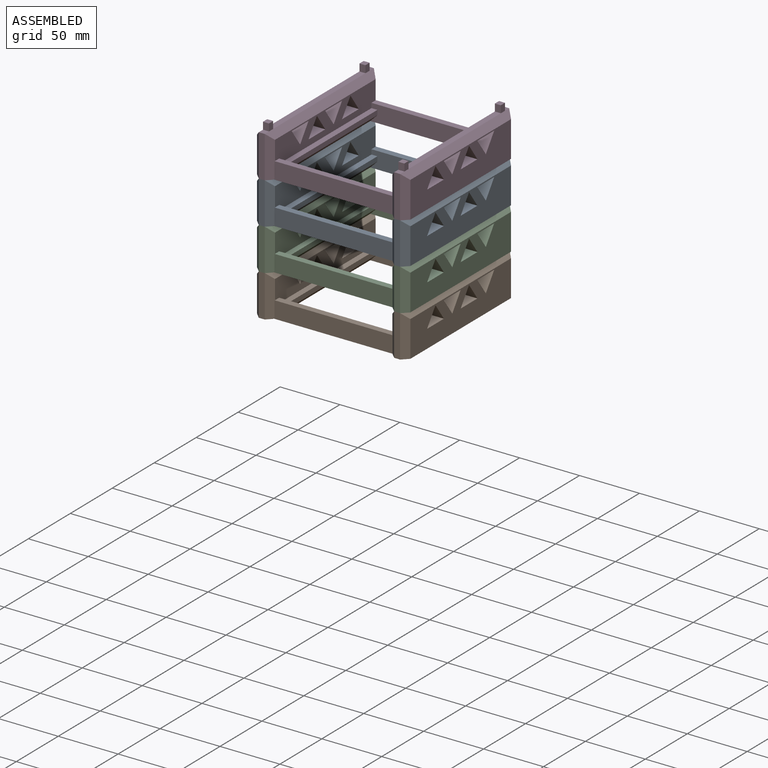
[diagram: assembled view]
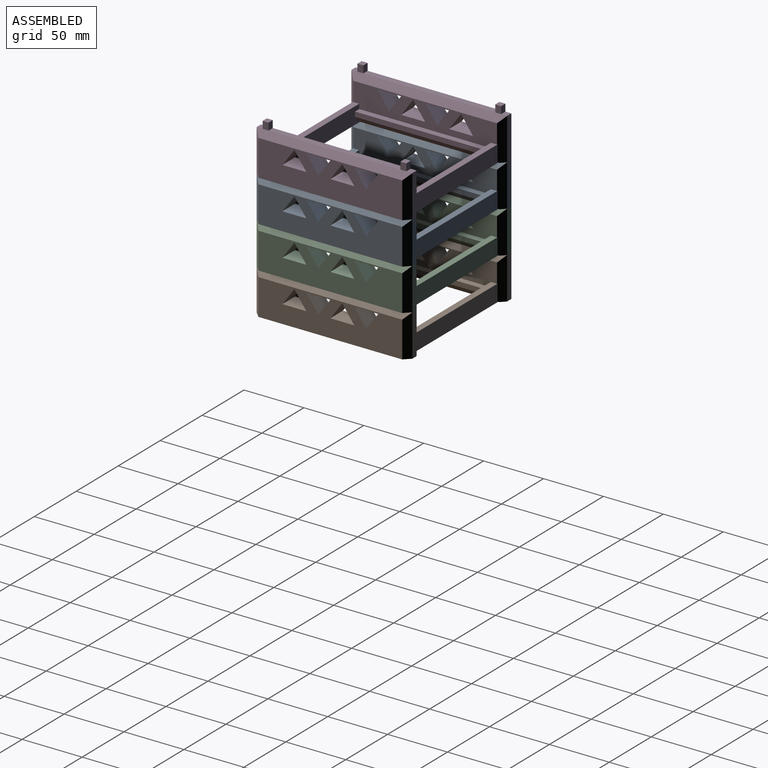
[diagram: assembled view, second angle]
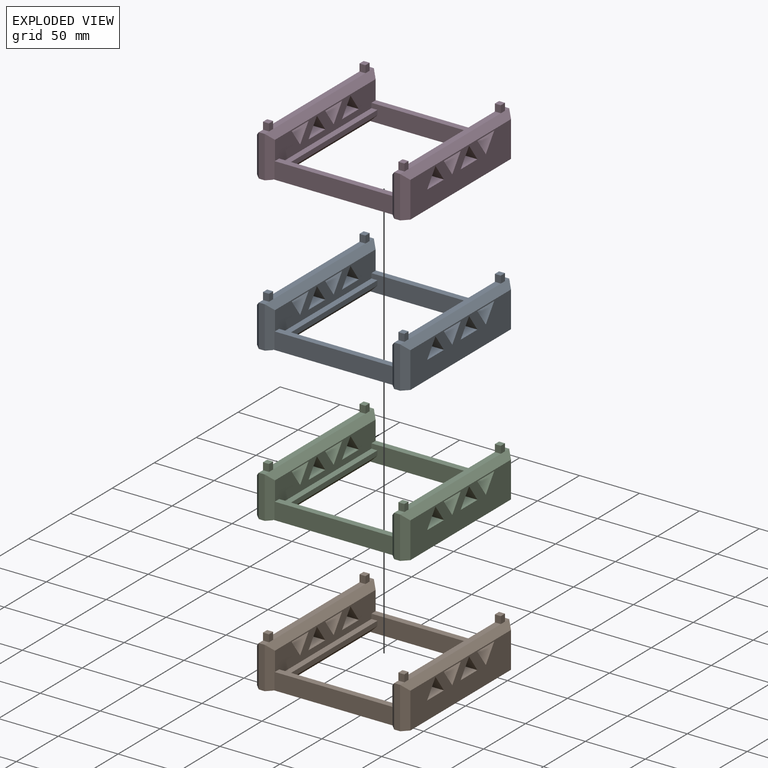
[diagram: exploded view]
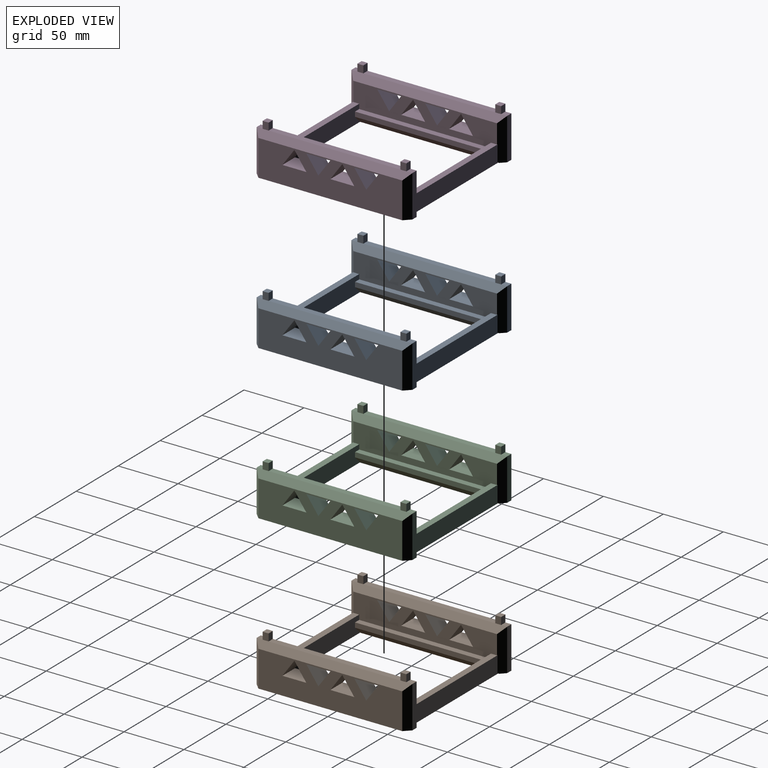
[diagram: exploded view, second angle]
ASSEMBLY  parts=4 mates=3
PART A: 107 faces, bbox 128x130x41 mm
  f0: plane 110x6mm, normal (0.71,0,-0.71), area 933.4mm2, adj f2,f3,f40,f42
  f1: plane 0.75x0.75mm, normal (0.71,0,-0.71), area 0.4mm2, adj f2,f23,f106
  f2: plane 130x128mm, normal (0,0,-1), area 4487mm2, adj f0,f1,f9,f10,f11,f22,f23,f24
  f3: plane 110x4mm, normal (1,0,0), area 440mm2, adj f0,f6,f40,f42
  f4: plane 5x5mm, normal (0,0,1), area 25mm2, adj f10,f17,f38,f39
  f5: plane 120x20mm, normal (1,0,0), area 1800mm2, adj f6,f22,f23,f26,f27,f28,f29,f30
  f6: plane 110x5mm, normal (0,0,1), area 550mm2, adj f3,f5,f40,f42
  f7: plane 5x5mm, normal (0,0,1), area 25mm2, adj f11,f15,f38,f39
  f8: plane 110x5mm, normal (0,0,1), area 550mm2, adj f13,f19,f38,f39
  f9: plane 120x30mm, normal (-1,0,0), area 3040mm2, adj f2,f24,f25,f26,f27,f28,f29,f30
  f10: plane 35x5mm, normal (0,1,0), area 175mm2, adj f2,f4,f22,f24
  f11: plane 35x5mm, normal (0,-1,0), area 175mm2, adj f2,f7,f23,f25
  f12: plane 6x5mm, normal (1,0,0), area 30mm2, adj f13,f15,f16,f39
  f13: plane 6x5mm, normal (0,1,0), area 30mm2, adj f8,f12,f14,f16
  f14: plane 6x5mm, normal (-1,0,0), area 30mm2, adj f13,f15,f16,f38
  f15: plane 6x5mm, normal (0,-1,0), area 30mm2, adj f7,f12,f14,f16
  f16: plane 5x5mm, normal (0,0,1), area 25mm2, adj f12,f13,f14,f15
  f17: plane 6x5mm, normal (0,1,0), area 30mm2, adj f4,f18,f20,f21
  f18: plane 6x5mm, normal (-1,0,0), area 30mm2, adj f17,f19,f21,f38
  f19: plane 6x5mm, normal (0,-1,0), area 30mm2, adj f8,f18,f20,f21
  f20: plane 6x5mm, normal (1,0,0), area 30mm2, adj f17,f19,f21,f39
  f21: plane 5x5mm, normal (0,0,1), area 25mm2, adj f17,f18,f19,f20
  f22: plane 35x5mm, normal (0.71,0.71,0), area 224.5mm2, adj f2,f5,f10,f39,f43,f44,f55
  f23: plane 35x5mm, normal (0.71,-0.71,0), area 224.5mm2, adj f1,f2,f5,f11,f39,f41,f106
  f24: plane 35x5mm, normal (-0.71,0.71,0), area 229.8mm2, adj f2,f9,f10,f38
  f25: plane 35x5mm, normal (-0.71,-0.71,0), area 229.8mm2, adj f2,f9,f11,f38
  f26: plane 20x15mm, normal (0,0,-1), area 300mm2, adj f5,f9,f27,f28
  f27: plane 15x14mm, normal (0,0.81,0.58), area 258.1mm2, adj f5,f9,f26,f28
  f28: plane 15x14mm, normal (0,-0.81,0.58), area 258.1mm2, adj f5,f9,f26,f27
  f29: plane 15x14mm, normal (0,0.81,-0.58), area 258.1mm2, adj f5,f9,f30,f31
  f30: plane 20x15mm, normal (0,0,1), area 300mm2, adj f5,f9,f29,f31
  f31: plane 15x14mm, normal (0,-0.81,-0.58), area 258.1mm2, adj f5,f9,f29,f30
  f32: plane 15x14mm, normal (0,-0.81,-0.58), area 258.1mm2, adj f5,f9,f33,f34
  f33: plane 15x14mm, normal (0,0.81,-0.58), area 258.1mm2, adj f5,f9,f32,f34
  f34: plane 20x15mm, normal (0,0,1), area 300mm2, adj f5,f9,f32,f33
  f35: plane 20x15mm, normal (0,0,-1), area 300mm2, adj f5,f9,f36,f37
  f36: plane 15x14mm, normal (0,0.81,0.58), area 258.1mm2, adj f5,f9,f35,f37
  f37: plane 15x14mm, normal (0,-0.81,0.58), area 258.1mm2, adj f5,f9,f35,f36
  f38: plane 130x5mm, normal (-0.71,0,0.71), area 883.9mm2, adj f4,f7,f8,f9,f14,f18,f24,f25
  f39: plane 130x5mm, normal (0.71,0,0.71), area 883.9mm2, adj f4,f5,f7,f8,f12,f20,f22,f23
  f40: plane 100x14mm, normal (0,1,0), area 1308mm2, adj f0,f2,f3,f5,f6,f41,f56,f58
  f41: plane 98.5x5.25mm, normal (0,0,1), area 514.6mm2, adj f5,f23,f40,f60,f77,f106
  f42: plane 100x14mm, normal (0,-1,0), area 1308mm2, adj f0,f2,f3,f5,f6,f43,f56,f58
  f43: plane 98.5x5.25mm, normal (0,0,1), area 514.6mm2, adj f5,f22,f42,f55,f60,f78
  f44: plane 0.75x0.75mm, normal (0.71,0,-0.71), area 0.4mm2, adj f2,f22,f55
  f45: plane 6x5.5mm, normal (0,-1,0), area 33mm2, adj f2,f46,f48,f49
  f46: plane 6x5.5mm, normal (-1,0,0), area 33mm2, adj f2,f45,f47,f49
  f47: plane 6x5.5mm, normal (0,1,0), area 33mm2, adj f2,f46,f48,f49
  f48: plane 6x5.5mm, normal (1,0,0), area 33mm2, adj f2,f45,f47,f49
  f49: plane 5.5x5.5mm, normal (0,0,-1), area 30.2mm2, adj f45,f46,f47,f48
  f50: plane 6x5.5mm, normal (0,-1,0), area 33mm2, adj f2,f51,f53,f54
  f51: plane 6x5.5mm, normal (-1,0,0), area 33mm2, adj f2,f50,f52,f54
  f52: plane 6x5.5mm, normal (0,1,0), area 33mm2, adj f2,f51,f53,f54
  f53: plane 6x5.5mm, normal (1,0,0), area 33mm2, adj f2,f50,f52,f54
  f54: plane 5.5x5.5mm, normal (0,0,-1), area 30.2mm2, adj f50,f51,f52,f53
  f55: plane 100x14mm, normal (0,1,0), area 1379.6mm2, adj f2,f22,f43,f44,f57,f78
  f56: plane 110x6mm, normal (-0.71,0,-0.71), area 933.4mm2, adj f2,f40,f42,f58
  f57: plane 0.75x0.75mm, normal (-0.71,0,-0.71), area 0.4mm2, adj f2,f55,f78
  f58: plane 110x4mm, normal (-1,0,0), area 440mm2, adj f40,f42,f56,f61
  f59: plane 5x5mm, normal (0,0,1), area 25mm2, adj f65,f72,f93,f94
  f60: plane 120x20mm, normal (-1,0,0), area 1800mm2, adj f40,f41,f42,f43,f61,f77,f78,f81
  f61: plane 110x5mm, normal (0,0,1), area 550mm2, adj f40,f42,f58,f60
  f62: plane 5x5mm, normal (0,0,1), area 25mm2, adj f66,f70,f93,f94
  f63: plane 110x5mm, normal (0,0,1), area 550mm2, adj f68,f74,f93,f94
  f64: plane 120x30mm, normal (1,0,0), area 3040mm2, adj f2,f79,f80,f81,f82,f83,f84,f85
  f65: plane 35x5mm, normal (0,-1,0), area 175mm2, adj f2,f59,f77,f79
  f66: plane 35x5mm, normal (0,1,0), area 175mm2, adj f2,f62,f78,f80
  f67: plane 6x5mm, normal (-1,0,0), area 30mm2, adj f68,f70,f71,f94
  f68: plane 6x5mm, normal (0,-1,0), area 30mm2, adj f63,f67,f69,f71
  f69: plane 6x5mm, normal (1,0,0), area 30mm2, adj f68,f70,f71,f93
  f70: plane 6x5mm, normal (0,1,0), area 30mm2, adj f62,f67,f69,f71
  f71: plane 5x5mm, normal (0,0,1), area 25mm2, adj f67,f68,f69,f70
  f72: plane 6x5mm, normal (0,-1,0), area 30mm2, adj f59,f73,f75,f76
  f73: plane 6x5mm, normal (1,0,0), area 30mm2, adj f72,f74,f76,f93
  f74: plane 6x5mm, normal (0,1,0), area 30mm2, adj f63,f73,f75,f76
  f75: plane 6x5mm, normal (-1,0,0), area 30mm2, adj f72,f74,f76,f94
  f76: plane 5x5mm, normal (0,0,1), area 25mm2, adj f72,f73,f74,f75
  f77: plane 35x5mm, normal (-0.71,-0.71,0), area 224.5mm2, adj f2,f41,f60,f65,f94,f95,f106
  f78: plane 35x5mm, normal (-0.71,0.71,0), area 224.5mm2, adj f2,f43,f55,f57,f60,f66,f94
  f79: plane 35x5mm, normal (0.71,-0.71,0), area 229.8mm2, adj f2,f64,f65,f93
  f80: plane 35x5mm, normal (0.71,0.71,0), area 229.8mm2, adj f2,f64,f66,f93
  f81: plane 20x15mm, normal (0,0,-1), area 300mm2, adj f60,f64,f82,f83
  f82: plane 15x14mm, normal (0,-0.81,0.58), area 258.1mm2, adj f60,f64,f81,f83
  f83: plane 15x14mm, normal (0,0.81,0.58), area 258.1mm2, adj f60,f64,f81,f82
  f84: plane 15x14mm, normal (0,-0.81,-0.58), area 258.1mm2, adj f60,f64,f85,f86
  f85: plane 20x15mm, normal (0,0,1), area 300mm2, adj f60,f64,f84,f86
  f86: plane 15x14mm, normal (0,0.81,-0.58), area 258.1mm2, adj f60,f64,f84,f85
  f87: plane 15x14mm, normal (0,0.81,-0.58), area 258.1mm2, adj f60,f64,f88,f89
  f88: plane 15x14mm, normal (0,-0.81,-0.58), area 258.1mm2, adj f60,f64,f87,f89
  f89: plane 20x15mm, normal (0,0,1), area 300mm2, adj f60,f64,f87,f88
  f90: plane 20x15mm, normal (0,0,-1), area 300mm2, adj f60,f64,f91,f92
  f91: plane 15x14mm, normal (0,-0.81,0.58), area 258.1mm2, adj f60,f64,f90,f92
  f92: plane 15x14mm, normal (0,0.81,0.58), area 258.1mm2, adj f60,f64,f90,f91
  f93: plane 130x5mm, normal (0.71,0,0.71), area 883.9mm2, adj f59,f62,f63,f64,f69,f73,f79,f80
  f94: plane 130x5mm, normal (-0.71,0,0.71), area 883.9mm2, adj f59,f60,f62,f63,f67,f75,f77,f78
  f95: plane 0.75x0.75mm, normal (-0.71,0,-0.71), area 0.4mm2, adj f2,f77,f106
  f96: plane 6x5.5mm, normal (0,1,0), area 33mm2, adj f2,f97,f99,f100
  f97: plane 6x5.5mm, normal (1,0,0), area 33mm2, adj f2,f96,f98,f100
  f98: plane 6x5.5mm, normal (0,-1,0), area 33mm2, adj f2,f97,f99,f100
  f99: plane 6x5.5mm, normal (-1,0,0), area 33mm2, adj f2,f96,f98,f100
  f100: plane 5.5x5.5mm, normal (0,0,-1), area 30.2mm2, adj f96,f97,f98,f99
  f101: plane 6x5.5mm, normal (0,1,0), area 33mm2, adj f2,f102,f104,f105
  f102: plane 6x5.5mm, normal (1,0,0), area 33mm2, adj f2,f101,f103,f105
  f103: plane 6x5.5mm, normal (0,-1,0), area 33mm2, adj f2,f102,f104,f105
  f104: plane 6x5.5mm, normal (-1,0,0), area 33mm2, adj f2,f101,f103,f105
  f105: plane 5.5x5.5mm, normal (0,0,-1), area 30.2mm2, adj f101,f102,f103,f104
  f106: plane 100x14mm, normal (0,-1,0), area 1379.6mm2, adj f1,f2,f23,f41,f77,f95
PART B: same geometry as A
PART C: same geometry as A
PART D: same geometry as A
PLACE A t=(-17.78,-0.46,62.2)mm
PLACE B t=(-17.78,-0.46,-7.8)mm
PLACE C t=(-17.78,-0.46,27.2)mm
PLACE D t=(-17.78,-0.46,97.2)mm
MATE fastened D.f54 <-> A.f16  axis (0,0,-1) through (-74.28,-57.96,103.2)mm
MATE fastened C.f54 <-> B.f16  axis (0,0,-1) through (-74.28,-57.96,33.2)mm
MATE fastened C.f16 <-> A.f54  axis (0,0,1) through (-74.28,-57.96,68.2)mm
